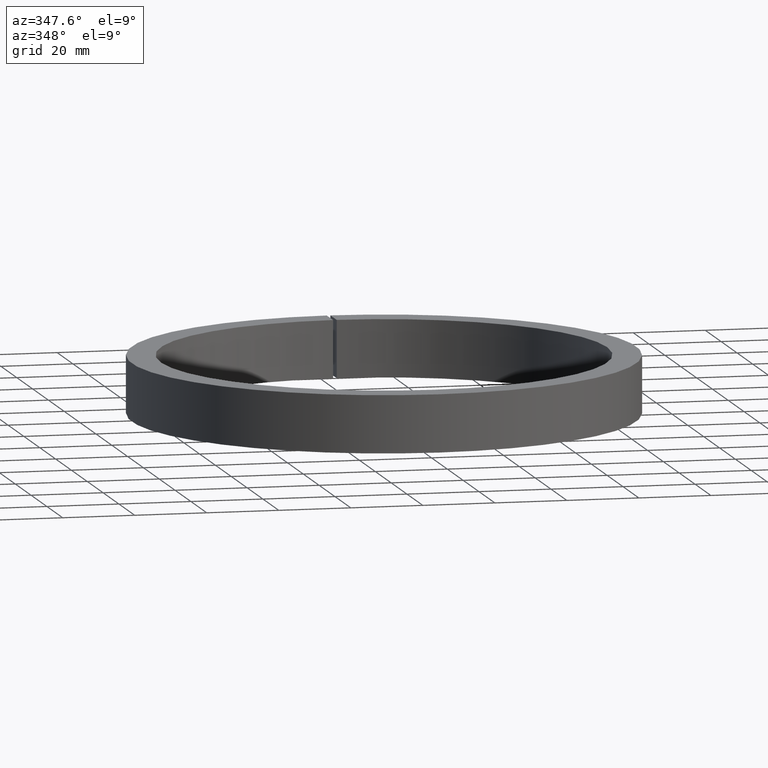
[diagram: clean part render]
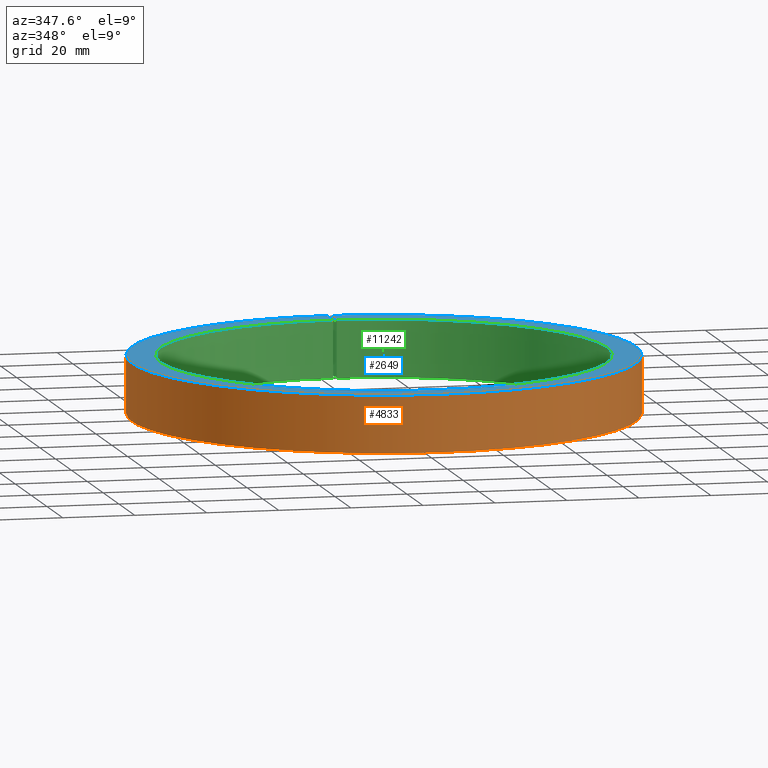
[diagram: same view with three faces highlighted in distinct colors, each labeled with its STEP entity id]
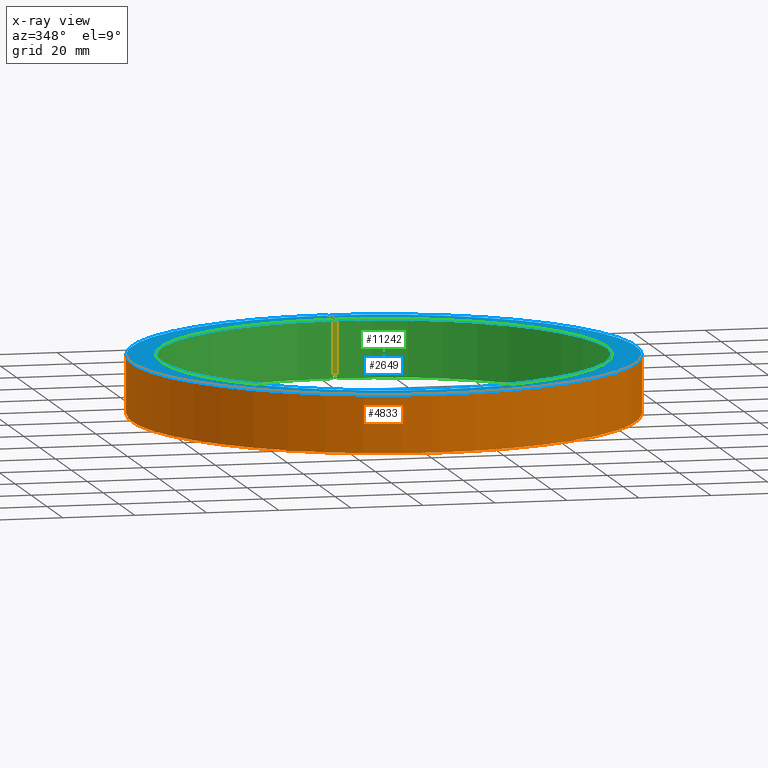
[diagram: x-ray of the same camera — body ghosted, the three highlighted faces saturated]
A machine part, auxiliary view with three faces highlighted in distinct colors.
The next image is the same camera in x-ray (body ghosted, the three faces saturated) — at least one of them is partly hidden behind the body in this view.
Their STEP definitions:

[orange] entity #4833 — the highlighted cylindrical surface (partial cylindrical patch) has radius 70 mm, axis along (-0, -0, -1).
#132 = VECTOR ( 'NONE', #5555, 1000.000000000000000 ) ;
#217 = DIRECTION ( 'NONE',  ( -0.0000000000000000000, -0.0000000000000000000, 1.000000000000000000 ) ) ;
#727 = ORIENTED_EDGE ( 'NONE', *, *, #2493, .F. ) ;
#873 = EDGE_CURVE ( 'NONE', #1732, #10832, #1099, .T. ) ;
#1099 = LINE ( 'NONE', #9816, #10285 ) ;
#1199 = ORIENTED_EDGE ( 'NONE', *, *, #9078, .T. ) ;
#1410 = CARTESIAN_POINT ( 'NONE',  ( 0.0000000000000000000, 0.0000000000000000000, 0.0000000000000000000 ) ) ;
#1732 = VERTEX_POINT ( 'NONE', #4523 ) ;
#2001 = ORIENTED_EDGE ( 'NONE', *, *, #9789, .T. ) ;
#2493 = EDGE_CURVE ( 'NONE', #6637, #1732, #8059, .T. ) ;
#2957 = DIRECTION ( 'NONE',  ( -0.0000000000000000000, -0.0000000000000000000, -1.000000000000000000 ) ) ;
#3044 = CARTESIAN_POINT ( 'NONE',  ( -0.5000000000000000000, 69.99821426293674200, 8.000000000000000000 ) ) ;
#3093 = DIRECTION ( 'NONE',  ( -1.000000000000000000, 0.0000000000000000000, 0.0000000000000000000 ) ) ;
#3248 = AXIS2_PLACEMENT_3D ( 'NONE', #10611, #2957, #5735 ) ;
#4523 = CARTESIAN_POINT ( 'NONE',  ( -0.5000000000000000000, 69.99821426293674200, -8.000000000000000000 ) ) ;
#4833 = ADVANCED_FACE ( 'NONE', ( #10408 ), #7878, .T. ) ;
#5143 = ORIENTED_EDGE ( 'NONE', *, *, #873, .F. ) ;
#5328 = DIRECTION ( 'NONE',  ( -1.000000000000000000, 0.0000000000000000000, 0.0000000000000000000 ) ) ;
#5555 = DIRECTION ( 'NONE',  ( -0.0000000000000000000, -0.0000000000000000000, 1.000000000000000000 ) ) ;
#5701 = AXIS2_PLACEMENT_3D ( 'NONE', #1410, #6281, #5328 ) ;
#5735 = DIRECTION ( 'NONE',  ( -1.000000000000000000, 0.0000000000000000000, 0.0000000000000000000 ) ) ;
#6281 = DIRECTION ( 'NONE',  ( -0.0000000000000000000, -0.0000000000000000000, -1.000000000000000000 ) ) ;
#6637 = VERTEX_POINT ( 'NONE', #7085 ) ;
#6950 = CIRCLE ( 'NONE', #11362, 70.00000000000000000 ) ;
#7009 = VERTEX_POINT ( 'NONE', #9932 ) ;
#7085 = CARTESIAN_POINT ( 'NONE',  ( 0.5000000000000000000, 69.99821426293674200, -8.000000000000000000 ) ) ;
#7777 = DIRECTION ( 'NONE',  ( -0.0000000000000000000, -0.0000000000000000000, -1.000000000000000000 ) ) ;
#7878 = CYLINDRICAL_SURFACE ( 'NONE', #5701, 70.00000000000000000 ) ;
#8059 = CIRCLE ( 'NONE', #3248, 70.00000000000000000 ) ;
#8261 = CARTESIAN_POINT ( 'NONE',  ( 0.5000000000000000000, 69.99821426293674200, -8.000000000000000000 ) ) ;
#8872 = CARTESIAN_POINT ( 'NONE',  ( 0.0000000000000000000, 0.0000000000000000000, 8.000000000000000000 ) ) ;
#9078 = EDGE_CURVE ( 'NONE', #7009, #10832, #6950, .T. ) ;
#9789 = EDGE_CURVE ( 'NONE', #6637, #7009, #10359, .T. ) ;
#9816 = CARTESIAN_POINT ( 'NONE',  ( -0.5000000000000000000, 69.99821426293674200, -8.000000000000000000 ) ) ;
#9932 = CARTESIAN_POINT ( 'NONE',  ( 0.5000000000000000000, 69.99821426293674200, 8.000000000000000000 ) ) ;
#10285 = VECTOR ( 'NONE', #217, 1000.000000000000000 ) ;
#10359 = LINE ( 'NONE', #8261, #132 ) ;
#10408 = FACE_OUTER_BOUND ( 'NONE', #11069, .T. ) ;
#10611 = CARTESIAN_POINT ( 'NONE',  ( 0.0000000000000000000, 0.0000000000000000000, -8.000000000000000000 ) ) ;
#10832 = VERTEX_POINT ( 'NONE', #3044 ) ;
#11069 = EDGE_LOOP ( 'NONE', ( #727, #2001, #1199, #5143 ) ) ;
#11362 = AXIS2_PLACEMENT_3D ( 'NONE', #8872, #7777, #3093 ) ;

[blue] entity #2649 — the highlighted planar face has unit normal (-0, 0, -1).
#52 = FACE_OUTER_BOUND ( 'NONE', #11094, .T. ) ;
#315 = CARTESIAN_POINT ( 'NONE',  ( -0.5000000000000000000, 61.99798383818622900, 8.000000000000000000 ) ) ;
#790 = CIRCLE ( 'NONE', #1189, 62.00000000000000700 ) ;
#846 = CARTESIAN_POINT ( 'NONE',  ( -0.5000000000000000000, 0.0000000000000000000, 8.000000000000000000 ) ) ;
#1189 = AXIS2_PLACEMENT_3D ( 'NONE', #6264, #6347, #7235 ) ;
#1514 = VECTOR ( 'NONE', #4689, 1000.000000000000000 ) ;
#2649 = ADVANCED_FACE ( 'NONE', ( #52 ), #3959, .F. ) ;
#3044 = CARTESIAN_POINT ( 'NONE',  ( -0.5000000000000000000, 69.99821426293674200, 8.000000000000000000 ) ) ;
#3093 = DIRECTION ( 'NONE',  ( -1.000000000000000000, 0.0000000000000000000, 0.0000000000000000000 ) ) ;
#3959 = PLANE ( 'NONE',  #8650 ) ;
#4100 = LINE ( 'NONE', #5023, #10245 ) ;
#4257 = EDGE_CURVE ( 'NONE', #5239, #12465, #790, .T. ) ;
#4607 = ORIENTED_EDGE ( 'NONE', *, *, #6433, .F. ) ;
#4689 = DIRECTION ( 'NONE',  ( 0.0000000000000000000, 1.000000000000000000, -0.0000000000000000000 ) ) ;
#4882 = CARTESIAN_POINT ( 'NONE',  ( 0.0000000000000000000, -62.00000000000000700, 8.000000000000000000 ) ) ;
#5023 = CARTESIAN_POINT ( 'NONE',  ( 0.5000000000000000000, 0.0000000000000000000, 8.000000000000000000 ) ) ;
#5134 = ORIENTED_EDGE ( 'NONE', *, *, #9078, .F. ) ;
#5239 = VERTEX_POINT ( 'NONE', #5747 ) ;
#5747 = CARTESIAN_POINT ( 'NONE',  ( 0.5000000000000000000, 61.99798383818622900, 8.000000000000000000 ) ) ;
#6264 = CARTESIAN_POINT ( 'NONE',  ( 0.0000000000000000000, 0.0000000000000000000, 8.000000000000000000 ) ) ;
#6347 = DIRECTION ( 'NONE',  ( -0.0000000000000000000, -0.0000000000000000000, -1.000000000000000000 ) ) ;
#6433 = EDGE_CURVE ( 'NONE', #5239, #7009, #4100, .T. ) ;
#6950 = CIRCLE ( 'NONE', #11362, 70.00000000000000000 ) ;
#6981 = DIRECTION ( 'NONE',  ( 0.0000000000000000000, 1.000000000000000000, -0.0000000000000000000 ) ) ;
#7009 = VERTEX_POINT ( 'NONE', #9932 ) ;
#7235 = DIRECTION ( 'NONE',  ( -1.000000000000000000, 0.0000000000000000000, 0.0000000000000000000 ) ) ;
#7269 = LINE ( 'NONE', #846, #1514 ) ;
#7391 = EDGE_CURVE ( 'NONE', #12465, #10832, #7269, .T. ) ;
#7777 = DIRECTION ( 'NONE',  ( -0.0000000000000000000, -0.0000000000000000000, -1.000000000000000000 ) ) ;
#8650 = AXIS2_PLACEMENT_3D ( 'NONE', #4882, #9674, #10683 ) ;
#8872 = CARTESIAN_POINT ( 'NONE',  ( 0.0000000000000000000, 0.0000000000000000000, 8.000000000000000000 ) ) ;
#8907 = ORIENTED_EDGE ( 'NONE', *, *, #4257, .T. ) ;
#9078 = EDGE_CURVE ( 'NONE', #7009, #10832, #6950, .T. ) ;
#9674 = DIRECTION ( 'NONE',  ( -0.0000000000000000000, 0.0000000000000000000, -1.000000000000000000 ) ) ;
#9932 = CARTESIAN_POINT ( 'NONE',  ( 0.5000000000000000000, 69.99821426293674200, 8.000000000000000000 ) ) ;
#10245 = VECTOR ( 'NONE', #6981, 1000.000000000000000 ) ;
#10683 = DIRECTION ( 'NONE',  ( -1.000000000000000000, 0.0000000000000000000, 0.0000000000000000000 ) ) ;
#10832 = VERTEX_POINT ( 'NONE', #3044 ) ;
#11094 = EDGE_LOOP ( 'NONE', ( #5134, #4607, #8907, #12413 ) ) ;
#11362 = AXIS2_PLACEMENT_3D ( 'NONE', #8872, #7777, #3093 ) ;
#12413 = ORIENTED_EDGE ( 'NONE', *, *, #7391, .T. ) ;
#12465 = VERTEX_POINT ( 'NONE', #315 ) ;

[green] entity #11242 — the highlighted cylindrical surface (partial cylindrical patch) has radius 62 mm, axis along (-0, -0, -1).
#315 = CARTESIAN_POINT ( 'NONE',  ( -0.5000000000000000000, 61.99798383818622900, 8.000000000000000000 ) ) ;
#702 = AXIS2_PLACEMENT_3D ( 'NONE', #10232, #1395, #4471 ) ;
#790 = CIRCLE ( 'NONE', #1189, 62.00000000000000700 ) ;
#1059 = CARTESIAN_POINT ( 'NONE',  ( -0.5000000000000000000, 61.99798383818622900, -8.000000000000000000 ) ) ;
#1189 = AXIS2_PLACEMENT_3D ( 'NONE', #6264, #6347, #7235 ) ;
#1395 = DIRECTION ( 'NONE',  ( -0.0000000000000000000, -0.0000000000000000000, -1.000000000000000000 ) ) ;
#1580 = CYLINDRICAL_SURFACE ( 'NONE', #11220, 62.00000000000000700 ) ;
#1795 = EDGE_CURVE ( 'NONE', #8201, #5239, #10579, .T. ) ;
#1865 = ORIENTED_EDGE ( 'NONE', *, *, #1795, .F. ) ;
#1877 = DIRECTION ( 'NONE',  ( -0.0000000000000000000, -0.0000000000000000000, -1.000000000000000000 ) ) ;
#2026 = DIRECTION ( 'NONE',  ( -0.0000000000000000000, -0.0000000000000000000, 1.000000000000000000 ) ) ;
#2194 = ORIENTED_EDGE ( 'NONE', *, *, #4257, .F. ) ;
#2593 = VECTOR ( 'NONE', #2026, 1000.000000000000000 ) ;
#3043 = EDGE_LOOP ( 'NONE', ( #2194, #1865, #3782, #8677 ) ) ;
#3243 = FACE_OUTER_BOUND ( 'NONE', #3043, .T. ) ;
#3402 = VECTOR ( 'NONE', #8978, 1000.000000000000000 ) ;
#3782 = ORIENTED_EDGE ( 'NONE', *, *, #4279, .T. ) ;
#4257 = EDGE_CURVE ( 'NONE', #5239, #12465, #790, .T. ) ;
#4279 = EDGE_CURVE ( 'NONE', #8201, #6739, #12216, .T. ) ;
#4471 = DIRECTION ( 'NONE',  ( -1.000000000000000000, 0.0000000000000000000, 0.0000000000000000000 ) ) ;
#5239 = VERTEX_POINT ( 'NONE', #5747 ) ;
#5747 = CARTESIAN_POINT ( 'NONE',  ( 0.5000000000000000000, 61.99798383818622900, 8.000000000000000000 ) ) ;
#6264 = CARTESIAN_POINT ( 'NONE',  ( 0.0000000000000000000, 0.0000000000000000000, 8.000000000000000000 ) ) ;
#6347 = DIRECTION ( 'NONE',  ( -0.0000000000000000000, -0.0000000000000000000, -1.000000000000000000 ) ) ;
#6739 = VERTEX_POINT ( 'NONE', #1059 ) ;
#6947 = CARTESIAN_POINT ( 'NONE',  ( 0.5000000000000000000, 61.99798383818622900, -8.000000000000000000 ) ) ;
#7235 = DIRECTION ( 'NONE',  ( -1.000000000000000000, 0.0000000000000000000, 0.0000000000000000000 ) ) ;
#7834 = CARTESIAN_POINT ( 'NONE',  ( -0.5000000000000000000, 61.99798383818622900, -8.000000000000000000 ) ) ;
#7935 = LINE ( 'NONE', #7834, #3402 ) ;
#8201 = VERTEX_POINT ( 'NONE', #8246 ) ;
#8246 = CARTESIAN_POINT ( 'NONE',  ( 0.5000000000000000000, 61.99798383818622900, -8.000000000000000000 ) ) ;
#8677 = ORIENTED_EDGE ( 'NONE', *, *, #11354, .T. ) ;
#8978 = DIRECTION ( 'NONE',  ( -0.0000000000000000000, -0.0000000000000000000, 1.000000000000000000 ) ) ;
#9718 = CARTESIAN_POINT ( 'NONE',  ( 0.0000000000000000000, 0.0000000000000000000, 0.0000000000000000000 ) ) ;
#10232 = CARTESIAN_POINT ( 'NONE',  ( 0.0000000000000000000, 0.0000000000000000000, -8.000000000000000000 ) ) ;
#10579 = LINE ( 'NONE', #6947, #2593 ) ;
#11220 = AXIS2_PLACEMENT_3D ( 'NONE', #9718, #1877, #11435 ) ;
#11242 = ADVANCED_FACE ( 'NONE', ( #3243 ), #1580, .F. ) ;
#11354 = EDGE_CURVE ( 'NONE', #6739, #12465, #7935, .T. ) ;
#11435 = DIRECTION ( 'NONE',  ( -1.000000000000000000, 0.0000000000000000000, 0.0000000000000000000 ) ) ;
#12216 = CIRCLE ( 'NONE', #702, 62.00000000000000700 ) ;
#12465 = VERTEX_POINT ( 'NONE', #315 ) ;